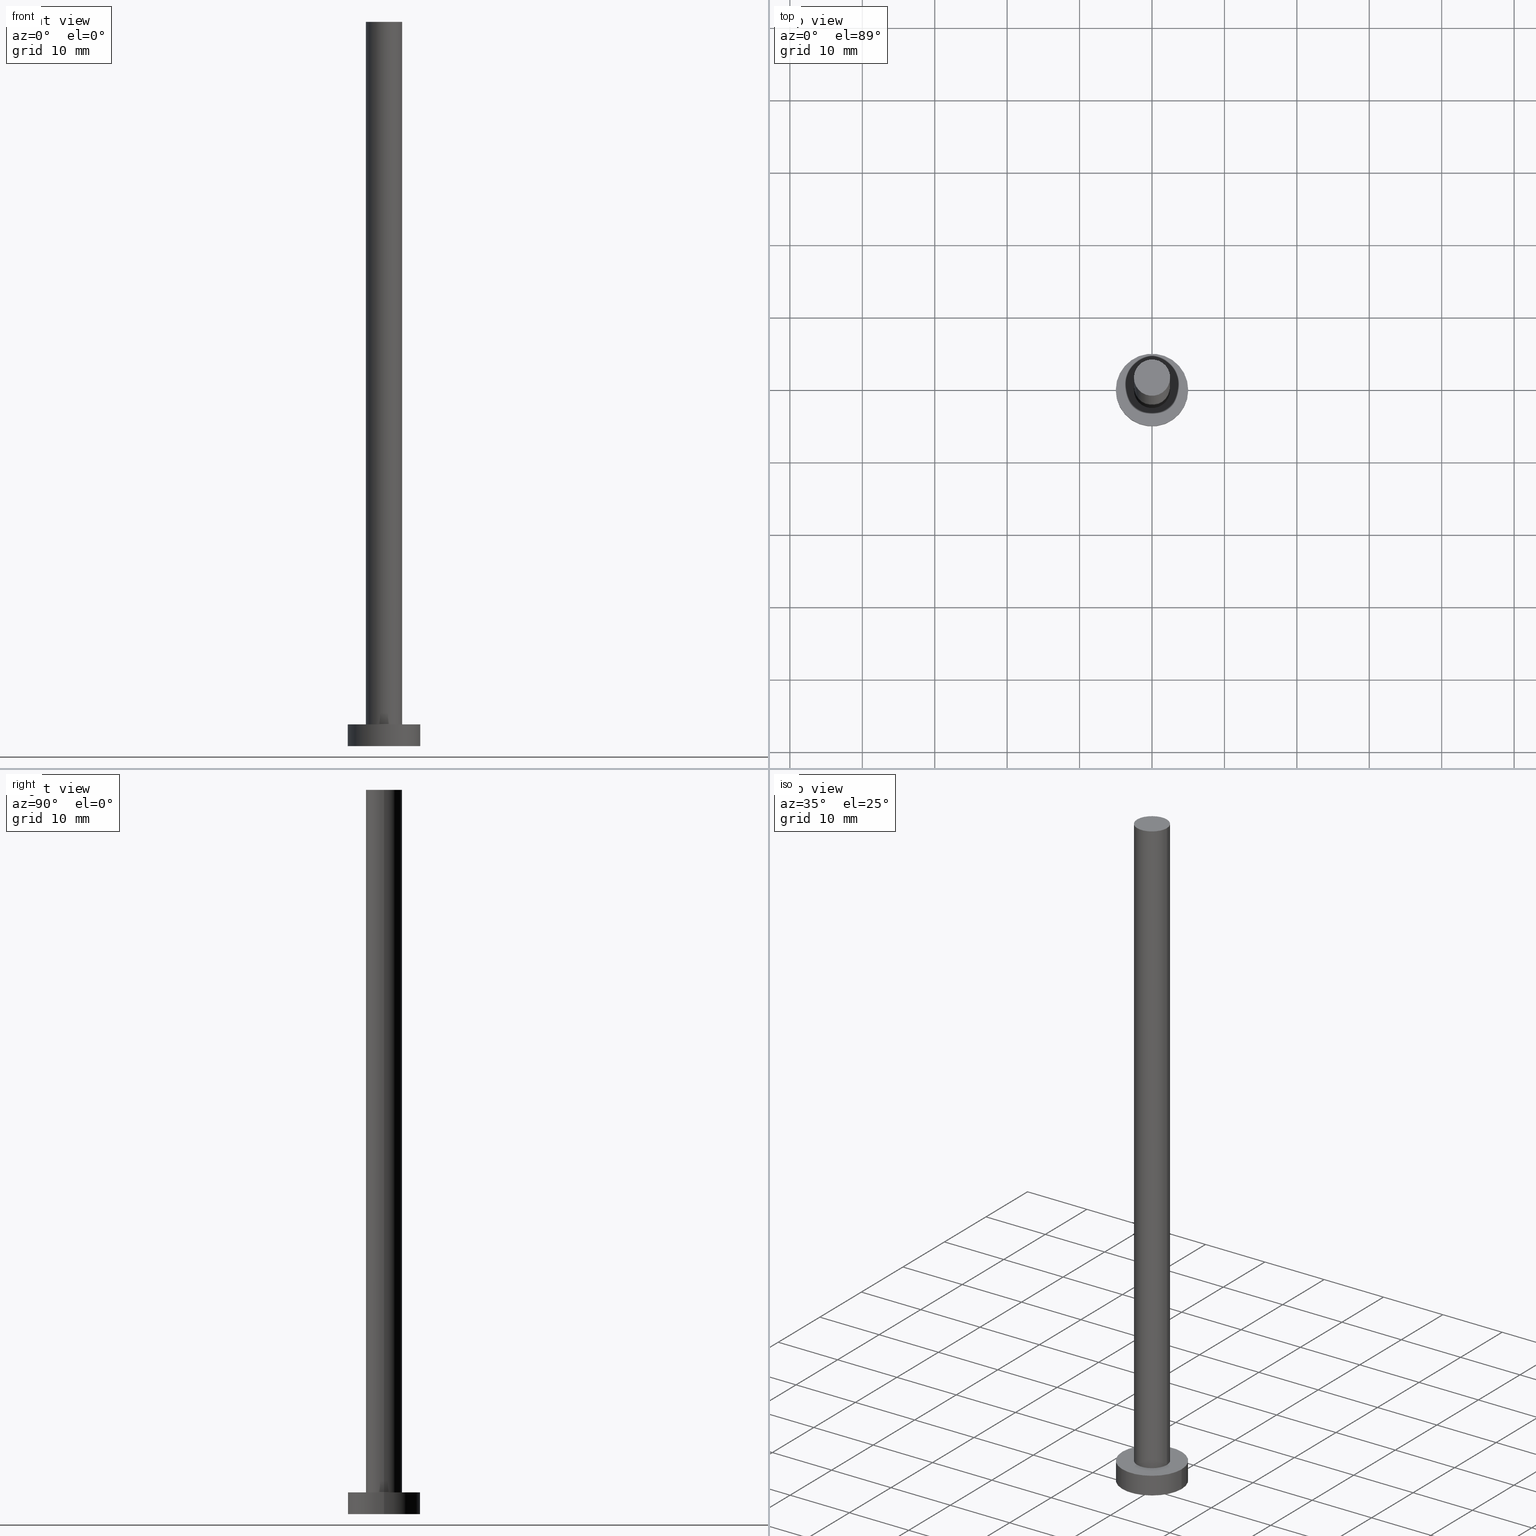
[diagram: canonical four-view strip — front | top / right | iso, engineering-drawing reading convention]
A machine part, canonical four-view strip (front | top / right | iso — engineering-drawing reading convention). The complete STEP part file that produces these views, byte-faithful:
ISO-10303-21;
HEADER;
FILE_DESCRIPTION (( 'STEP AP203' ),
    '1' );
FILE_NAME ('5b1f.STEP',
    '2023-02-13T15:03:22',
    ( '' ),
    ( '' ),
    'SwSTEP 2.0',
    'SolidWorks 2019',
    '' );
FILE_SCHEMA (( 'CONFIG_CONTROL_DESIGN' ));
ENDSEC;

DATA;
#1 = EDGE_CURVE ( 'NONE', #80, #205, #29, .T. ) ;
#2 =( NAMED_UNIT ( * ) SI_UNIT ( $, .STERADIAN. ) SOLID_ANGLE_UNIT ( ) );
#3 = CARTESIAN_POINT ( 'NONE',  ( -5.000000000000000000, 0.000000000000000000, 3.000000000000000000 ) ) ;
#4 = MECHANICAL_CONTEXT ( 'NONE', #49, 'mechanical' ) ;
#5 = CARTESIAN_POINT ( 'NONE',  ( 0.000000000000000000, 0.000000000000000000, 3.000000000000000000 ) ) ;
#6 = FACE_OUTER_BOUND ( 'NONE', #15, .T. ) ;
#7 = AXIS2_PLACEMENT_3D ( 'NONE', #98, #189, #209 ) ;
#8 = AXIS2_PLACEMENT_3D ( 'NONE', #33, #27, #218 ) ;
#9 = DATE_TIME_ROLE ( 'classification_date' ) ;
#10 = ADVANCED_FACE ( 'NONE', ( #230 ), #152, .T. ) ;
#11 = AXIS2_PLACEMENT_3D ( 'NONE', #210, #62, #192 ) ;
#12 = LOCAL_TIME ( 16, 3, 22.00000000000000000, #243 ) ;
#13 = APPLICATION_CONTEXT ( 'configuration controlled 3d designs of mechanical parts and assemblies' ) ;
#14 = PERSON_AND_ORGANIZATION_ROLE ( 'design_owner' ) ;
#15 = EDGE_LOOP ( 'NONE', ( #231, #117 ) ) ;
#16 = AXIS2_PLACEMENT_3D ( 'NONE', #228, #132, #204 ) ;
#17 = AXIS2_PLACEMENT_3D ( 'NONE', #140, #107, #183 ) ;
#18 = ORIENTED_EDGE ( 'NONE', *, *, #170, .T. ) ;
#19 = CARTESIAN_POINT ( 'NONE',  ( 5.000000000000000000, 6.123233995736766282E-16, 0.000000000000000000 ) ) ;
#20 = PRODUCT_DEFINITION ( 'NEZN�M�', '', #196, #23 ) ;
#21 = EDGE_CURVE ( 'NONE', #205, #80, #93, .T. ) ;
#22 = ORIENTED_EDGE ( 'NONE', *, *, #95, .T. ) ;
#23 = DESIGN_CONTEXT ( 'detailed design', #13, 'design' ) ;
#24 = VECTOR ( 'NONE', #160, 1000.000000000000000 ) ;
#25 = ORIENTED_EDGE ( 'NONE', *, *, #146, .F. ) ;
#26 = CC_DESIGN_PERSON_AND_ORGANIZATION_ASSIGNMENT ( #244, #165, ( #196 ) ) ;
#27 = DIRECTION ( 'NONE',  ( -0.000000000000000000, -0.000000000000000000, -1.000000000000000000 ) ) ;
#28 = FACE_OUTER_BOUND ( 'NONE', #60, .T. ) ;
#29 = CIRCLE ( 'NONE', #57, 2.500000000000000000 ) ;
#30 = DIRECTION ( 'NONE',  ( 0.000000000000000000, 0.000000000000000000, 1.000000000000000000 ) ) ;
#31 = CIRCLE ( 'NONE', #82, 2.500000000000000000 ) ;
#32 = DIRECTION ( 'NONE',  ( 0.000000000000000000, 0.000000000000000000, 1.000000000000000000 ) ) ;
#33 = CARTESIAN_POINT ( 'NONE',  ( 0.000000000000000000, 0.000000000000000000, 3.000000000000000000 ) ) ;
#34 = CC_DESIGN_PERSON_AND_ORGANIZATION_ASSIGNMENT ( #199, #221, ( #20 ) ) ;
#35 = CALENDAR_DATE ( 2023, 13, 2 ) ;
#36 = APPROVAL_STATUS ( 'not_yet_approved' ) ;
#37 = DATE_AND_TIME ( #35, #164 ) ;
#38 =( GEOMETRIC_REPRESENTATION_CONTEXT ( 3 ) GLOBAL_UNCERTAINTY_ASSIGNED_CONTEXT ( ( #195 ) ) GLOBAL_UNIT_ASSIGNED_CONTEXT ( ( #66, #194, #2 ) ) REPRESENTATION_CONTEXT ( 'NONE', 'WORKASPACE' ) );
#39 = CARTESIAN_POINT ( 'NONE',  ( 2.500000000000000000, 3.061616997868382648E-16, 100.0000000000000000 ) ) ;
#40 = ORIENTED_EDGE ( 'NONE', *, *, #21, .F. ) ;
#41 = VECTOR ( 'NONE', #215, 1000.000000000000000 ) ;
#42 = CARTESIAN_POINT ( 'NONE',  ( 0.000000000000000000, 0.000000000000000000, 3.000000000000000000 ) ) ;
#43 = ORIENTED_EDGE ( 'NONE', *, *, #77, .T. ) ;
#44 = ORIENTED_EDGE ( 'NONE', *, *, #77, .F. ) ;
#45 = PRODUCT_RELATED_PRODUCT_CATEGORY ( 'detail', '', ( #46 ) ) ;
#46 = PRODUCT ( '5b1f', '5b1f', '', ( #4 ) ) ;
#47 = LINE ( 'NONE', #106, #41 ) ;
#48 = CARTESIAN_POINT ( 'NONE',  ( 5.000000000000000000, 6.123233995736766282E-16, 3.000000000000000000 ) ) ;
#49 = APPLICATION_CONTEXT ( 'configuration controlled 3d designs of mechanical parts and assemblies' ) ;
#50 = DIRECTION ( 'NONE',  ( 1.000000000000000000, 0.000000000000000000, 0.000000000000000000 ) ) ;
#51 = AXIS2_PLACEMENT_3D ( 'NONE', #148, #203, #247 ) ;
#52 = CYLINDRICAL_SURFACE ( 'NONE', #245, 5.000000000000000000 ) ;
#53 = PERSON_AND_ORGANIZATION ( #180, #154 ) ;
#54 = APPROVAL_STATUS ( 'not_yet_approved' ) ;
#55 = CC_DESIGN_PERSON_AND_ORGANIZATION_ASSIGNMENT ( #74, #242, ( #196 ) ) ;
#56 = APPROVAL_STATUS ( 'not_yet_approved' ) ;
#57 = AXIS2_PLACEMENT_3D ( 'NONE', #42, #249, #175 ) ;
#58 = CC_DESIGN_APPROVAL ( #214, ( #196 ) ) ;
#59 = ORIENTED_EDGE ( 'NONE', *, *, #70, .F. ) ;
#60 = EDGE_LOOP ( 'NONE', ( #59, #253, #43, #155 ) ) ;
#61 = CC_DESIGN_DATE_AND_TIME_ASSIGNMENT ( #89, #127, ( #20 ) ) ;
#62 = DIRECTION ( 'NONE',  ( -0.000000000000000000, -0.000000000000000000, -1.000000000000000000 ) ) ;
#63 = AXIS2_PLACEMENT_3D ( 'NONE', #131, #225, #111 ) ;
#64 = ORIENTED_EDGE ( 'NONE', *, *, #220, .T. ) ;
#65 = VERTEX_POINT ( 'NONE', #19 ) ;
#66 =( LENGTH_UNIT ( ) NAMED_UNIT ( * ) SI_UNIT ( .MILLI., .METRE. ) );
#67 = APPLICATION_PROTOCOL_DEFINITION ( 'international standard', 'config_control_design', 1994, #49 ) ;
#68 = FACE_OUTER_BOUND ( 'NONE', #156, .T. ) ;
#69 = CC_DESIGN_PERSON_AND_ORGANIZATION_ASSIGNMENT ( #202, #113, ( #88 ) ) ;
#70 = EDGE_CURVE ( 'NONE', #79, #80, #233, .T. ) ;
#71 = DIRECTION ( 'NONE',  ( 1.000000000000000000, 0.000000000000000000, 0.000000000000000000 ) ) ;
#72 = APPROVAL_PERSON_ORGANIZATION ( #90, #103, #185 ) ;
#73 = CALENDAR_DATE ( 2023, 13, 2 ) ;
#74 = PERSON_AND_ORGANIZATION ( #180, #154 ) ;
#75 = COORDINATED_UNIVERSAL_TIME_OFFSET ( 1, 0, .AHEAD. ) ;
#76 = CC_DESIGN_APPROVAL ( #255, ( #88 ) ) ;
#77 = EDGE_CURVE ( 'NONE', #94, #205, #119, .T. ) ;
#78 = PERSON_AND_ORGANIZATION ( #180, #154 ) ;
#79 = VERTEX_POINT ( 'NONE', #114 ) ;
#80 = VERTEX_POINT ( 'NONE', #252 ) ;
#81 = ORIENTED_EDGE ( 'NONE', *, *, #239, .T. ) ;
#82 = AXIS2_PLACEMENT_3D ( 'NONE', #177, #213, #71 ) ;
#83 = FACE_OUTER_BOUND ( 'NONE', #96, .T. ) ;
#84 = CYLINDRICAL_SURFACE ( 'NONE', #17, 2.500000000000000000 ) ;
#85 = CARTESIAN_POINT ( 'NONE',  ( 0.000000000000000000, 0.000000000000000000, 100.0000000000000000 ) ) ;
#86 = CARTESIAN_POINT ( 'NONE',  ( -5.000000000000000000, 0.000000000000000000, 0.000000000000000000 ) ) ;
#87 = DIRECTION ( 'NONE',  ( -0.000000000000000000, -0.000000000000000000, -1.000000000000000000 ) ) ;
#88 = SECURITY_CLASSIFICATION ( '', '', #227 ) ;
#89 = DATE_AND_TIME ( #73, #99 ) ;
#90 = PERSON_AND_ORGANIZATION ( #180, #154 ) ;
#91 = ADVANCED_FACE ( 'NONE', ( #83 ), #234, .F. ) ;
#92 = APPROVAL_DATE_TIME ( #37, #255 ) ;
#93 = CIRCLE ( 'NONE', #7, 2.500000000000000000 ) ;
#94 = VERTEX_POINT ( 'NONE', #236 ) ;
#95 = EDGE_CURVE ( 'NONE', #65, #136, #153, .T. ) ;
#96 = EDGE_LOOP ( 'NONE', ( #169, #190 ) ) ;
#97 = EDGE_LOOP ( 'NONE', ( #149, #120, #151, #44 ) ) ;
#98 = CARTESIAN_POINT ( 'NONE',  ( 0.000000000000000000, 0.000000000000000000, 3.000000000000000000 ) ) ;
#99 = LOCAL_TIME ( 16, 3, 22.00000000000000000, #75 ) ;
#100 = EDGE_LOOP ( 'NONE', ( #186, #188, #18, #168 ) ) ;
#101 = FACE_OUTER_BOUND ( 'NONE', #118, .T. ) ;
#102 = PLANE ( 'NONE',  #191 ) ;
#103 = APPROVAL ( #54, 'NEUR�EN�' ) ;
#104 = DIRECTION ( 'NONE',  ( 1.000000000000000000, 0.000000000000000000, 0.000000000000000000 ) ) ;
#105 = DIRECTION ( 'NONE',  ( 1.000000000000000000, 0.000000000000000000, 0.000000000000000000 ) ) ;
#106 = CARTESIAN_POINT ( 'NONE',  ( 5.000000000000000000, 6.123233995736766282E-16, 3.000000000000000000 ) ) ;
#107 = DIRECTION ( 'NONE',  ( -0.000000000000000000, -0.000000000000000000, -1.000000000000000000 ) ) ;
#108 = SHAPE_DEFINITION_REPRESENTATION ( #246, #128 ) ;
#109 = DIRECTION ( 'NONE',  ( 0.000000000000000000, 0.000000000000000000, 1.000000000000000000 ) ) ;
#110 = DATE_AND_TIME ( #129, #130 ) ;
#111 = DIRECTION ( 'NONE',  ( 1.000000000000000000, 0.000000000000000000, -0.000000000000000000 ) ) ;
#112 = ADVANCED_FACE ( 'NONE', ( #101 ), #52, .T. ) ;
#113 = PERSON_AND_ORGANIZATION_ROLE ( 'classification_officer' ) ;
#114 = CARTESIAN_POINT ( 'NONE',  ( 2.500000000000000000, 3.061616997868382648E-16, 100.0000000000000000 ) ) ;
#115 = ADVANCED_FACE ( 'NONE', ( #122 ), #193, .T. ) ;
#116 = AXIS2_PLACEMENT_3D ( 'NONE', #159, #238, #104 ) ;
#117 = ORIENTED_EDGE ( 'NONE', *, *, #226, .T. ) ;
#118 = EDGE_LOOP ( 'NONE', ( #25, #81, #22, #138 ) ) ;
#119 = LINE ( 'NONE', #157, #237 ) ;
#120 = ORIENTED_EDGE ( 'NONE', *, *, #70, .T. ) ;
#121 = AXIS2_PLACEMENT_3D ( 'NONE', #141, #30, #105 ) ;
#122 = FACE_OUTER_BOUND ( 'NONE', #100, .T. ) ;
#123 = APPROVAL_PERSON_ORGANIZATION ( #78, #214, #145 ) ;
#124 = CARTESIAN_POINT ( 'NONE',  ( 0.000000000000000000, 0.000000000000000000, 3.000000000000000000 ) ) ;
#125 = DATE_AND_TIME ( #147, #12 ) ;
#126 = APPLICATION_PROTOCOL_DEFINITION ( 'international standard', 'config_control_design', 1994, #13 ) ;
#127 = DATE_TIME_ROLE ( 'creation_date' ) ;
#128 = ADVANCED_BREP_SHAPE_REPRESENTATION ( '5b1f', ( #182, #121 ), #38 ) ;
#129 = CALENDAR_DATE ( 2023, 13, 2 ) ;
#130 = LOCAL_TIME ( 16, 3, 22.00000000000000000, #224 ) ;
#131 = CARTESIAN_POINT ( 'NONE',  ( 0.000000000000000000, 0.000000000000000000, 3.000000000000000000 ) ) ;
#132 = DIRECTION ( 'NONE',  ( 0.000000000000000000, 0.000000000000000000, 1.000000000000000000 ) ) ;
#133 = ADVANCED_FACE ( 'NONE', ( #28 ), #84, .T. ) ;
#134 = VERTEX_POINT ( 'NONE', #48 ) ;
#135 = CIRCLE ( 'NONE', #51, 5.000000000000000000 ) ;
#136 = VERTEX_POINT ( 'NONE', #86 ) ;
#137 = DIRECTION ( 'NONE',  ( -0.000000000000000000, -0.000000000000000000, -1.000000000000000000 ) ) ;
#138 = ORIENTED_EDGE ( 'NONE', *, *, #170, .F. ) ;
#139 = CARTESIAN_POINT ( 'NONE',  ( -5.000000000000000000, 0.000000000000000000, 3.000000000000000000 ) ) ;
#140 = CARTESIAN_POINT ( 'NONE',  ( 0.000000000000000000, 0.000000000000000000, 100.0000000000000000 ) ) ;
#141 = CARTESIAN_POINT ( 'NONE',  ( 0.000000000000000000, 0.000000000000000000, 0.000000000000000000 ) ) ;
#142 = CIRCLE ( 'NONE', #173, 5.000000000000000000 ) ;
#143 = DIRECTION ( 'NONE',  ( 0.000000000000000000, 0.000000000000000000, 1.000000000000000000 ) ) ;
#144 = COORDINATED_UNIVERSAL_TIME_OFFSET ( 1, 0, .AHEAD. ) ;
#145 = APPROVAL_ROLE ( '' ) ;
#146 = EDGE_CURVE ( 'NONE', #134, #208, #179, .T. ) ;
#147 = CALENDAR_DATE ( 2023, 13, 2 ) ;
#148 = CARTESIAN_POINT ( 'NONE',  ( 0.000000000000000000, 0.000000000000000000, 0.000000000000000000 ) ) ;
#149 = ORIENTED_EDGE ( 'NONE', *, *, #226, .F. ) ;
#150 = CARTESIAN_POINT ( 'NONE',  ( -2.500000000000000000, 0.000000000000000000, 3.000000000000000000 ) ) ;
#151 = ORIENTED_EDGE ( 'NONE', *, *, #1, .T. ) ;
#152 = CYLINDRICAL_SURFACE ( 'NONE', #11, 2.500000000000000000 ) ;
#153 = CIRCLE ( 'NONE', #223, 5.000000000000000000 ) ;
#154 = ORGANIZATION ( 'NEUR�EN�', 'NEUR�EN�', '' ) ;
#155 = ORIENTED_EDGE ( 'NONE', *, *, #21, .T. ) ;
#156 = EDGE_LOOP ( 'NONE', ( #64, #172 ) ) ;
#157 = CARTESIAN_POINT ( 'NONE',  ( -2.500000000000000000, 0.000000000000000000, 100.0000000000000000 ) ) ;
#158 = VECTOR ( 'NONE', #137, 1000.000000000000000 ) ;
#159 = CARTESIAN_POINT ( 'NONE',  ( 0.000000000000000000, 0.000000000000000000, 3.000000000000000000 ) ) ;
#160 = DIRECTION ( 'NONE',  ( -0.000000000000000000, -0.000000000000000000, -1.000000000000000000 ) ) ;
#161 = DIRECTION ( 'NONE',  ( -1.000000000000000000, 0.000000000000000000, 0.000000000000000000 ) ) ;
#162 = CLOSED_SHELL ( 'NONE', ( #10, #112, #115, #171, #91, #133, #206 ) ) ;
#163 = CIRCLE ( 'NONE', #251, 2.500000000000000000 ) ;
#164 = LOCAL_TIME ( 16, 3, 22.00000000000000000, #200 ) ;
#165 = PERSON_AND_ORGANIZATION_ROLE ( 'creator' ) ;
#166 = APPROVAL_ROLE ( '' ) ;
#167 = CALENDAR_DATE ( 2023, 13, 2 ) ;
#168 = ORIENTED_EDGE ( 'NONE', *, *, #176, .T. ) ;
#169 = ORIENTED_EDGE ( 'NONE', *, *, #176, .F. ) ;
#170 = EDGE_CURVE ( 'NONE', #208, #136, #178, .T. ) ;
#171 = ADVANCED_FACE ( 'NONE', ( #240, #68 ), #216, .T. ) ;
#172 = ORIENTED_EDGE ( 'NONE', *, *, #146, .T. ) ;
#173 = AXIS2_PLACEMENT_3D ( 'NONE', #124, #32, #50 ) ;
#174 = DIRECTION ( 'NONE',  ( -0.000000000000000000, -0.000000000000000000, -1.000000000000000000 ) ) ;
#175 = DIRECTION ( 'NONE',  ( 1.000000000000000000, 0.000000000000000000, 0.000000000000000000 ) ) ;
#176 = EDGE_CURVE ( 'NONE', #136, #65, #135, .T. ) ;
#177 = CARTESIAN_POINT ( 'NONE',  ( 0.000000000000000000, 0.000000000000000000, 100.0000000000000000 ) ) ;
#178 = LINE ( 'NONE', #3, #24 ) ;
#179 = CIRCLE ( 'NONE', #116, 5.000000000000000000 ) ;
#180 = PERSON ( 'NEUR�EN�', 'NEUR�EN�', 'NEUR�EN�', ('NEUR�EN�'), ('NEUR�EN�'), ('NEUR�EN�') ) ;
#181 = DIRECTION ( 'NONE',  ( 1.000000000000000000, 0.000000000000000000, 0.000000000000000000 ) ) ;
#182 = MANIFOLD_SOLID_BREP ( 'P�idat vysunut�m3', #162 ) ;
#183 = DIRECTION ( 'NONE',  ( -1.000000000000000000, 0.000000000000000000, 0.000000000000000000 ) ) ;
#184 = APPROVAL_DATE_TIME ( #125, #214 ) ;
#185 = APPROVAL_ROLE ( '' ) ;
#186 = ORIENTED_EDGE ( 'NONE', *, *, #239, .F. ) ;
#187 = CC_DESIGN_DATE_AND_TIME_ASSIGNMENT ( #110, #9, ( #88 ) ) ;
#188 = ORIENTED_EDGE ( 'NONE', *, *, #220, .F. ) ;
#189 = DIRECTION ( 'NONE',  ( 0.000000000000000000, 0.000000000000000000, 1.000000000000000000 ) ) ;
#190 = ORIENTED_EDGE ( 'NONE', *, *, #95, .F. ) ;
#191 = AXIS2_PLACEMENT_3D ( 'NONE', #254, #143, #217 ) ;
#192 = DIRECTION ( 'NONE',  ( -1.000000000000000000, 0.000000000000000000, 0.000000000000000000 ) ) ;
#193 = CYLINDRICAL_SURFACE ( 'NONE', #8, 5.000000000000000000 ) ;
#194 =( NAMED_UNIT ( * ) PLANE_ANGLE_UNIT ( ) SI_UNIT ( $, .RADIAN. ) );
#195 = UNCERTAINTY_MEASURE_WITH_UNIT (LENGTH_MEASURE( 1.000000000000000082E-05 ), #66, 'distance_accuracy_value', 'NONE');
#196 = PRODUCT_DEFINITION_FORMATION_WITH_SPECIFIED_SOURCE ( 'LIBOVOLN�', '', #46, .NOT_KNOWN. ) ;
#197 = DIRECTION ( 'NONE',  ( 1.000000000000000000, 0.000000000000000000, 0.000000000000000000 ) ) ;
#198 = PERSON_AND_ORGANIZATION ( #180, #154 ) ;
#199 = PERSON_AND_ORGANIZATION ( #180, #154 ) ;
#200 = COORDINATED_UNIVERSAL_TIME_OFFSET ( 1, 0, .AHEAD. ) ;
#201 = APPROVAL_DATE_TIME ( #222, #103 ) ;
#202 = PERSON_AND_ORGANIZATION ( #180, #154 ) ;
#203 = DIRECTION ( 'NONE',  ( 0.000000000000000000, 0.000000000000000000, 1.000000000000000000 ) ) ;
#204 = DIRECTION ( 'NONE',  ( 1.000000000000000000, 0.000000000000000000, -0.000000000000000000 ) ) ;
#205 = VERTEX_POINT ( 'NONE', #150 ) ;
#206 = ADVANCED_FACE ( 'NONE', ( #6 ), #102, .T. ) ;
#207 = APPROVAL_PERSON_ORGANIZATION ( #198, #255, #166 ) ;
#208 = VERTEX_POINT ( 'NONE', #139 ) ;
#209 = DIRECTION ( 'NONE',  ( 1.000000000000000000, 0.000000000000000000, 0.000000000000000000 ) ) ;
#210 = CARTESIAN_POINT ( 'NONE',  ( 0.000000000000000000, 0.000000000000000000, 100.0000000000000000 ) ) ;
#211 = CC_DESIGN_SECURITY_CLASSIFICATION ( #88, ( #196 ) ) ;
#212 = CARTESIAN_POINT ( 'NONE',  ( 0.000000000000000000, 0.000000000000000000, 0.000000000000000000 ) ) ;
#213 = DIRECTION ( 'NONE',  ( 0.000000000000000000, 0.000000000000000000, 1.000000000000000000 ) ) ;
#214 = APPROVAL ( #36, 'NEUR�EN�' ) ;
#215 = DIRECTION ( 'NONE',  ( -0.000000000000000000, -0.000000000000000000, -1.000000000000000000 ) ) ;
#216 = PLANE ( 'NONE',  #63 ) ;
#217 = DIRECTION ( 'NONE',  ( 1.000000000000000000, 0.000000000000000000, -0.000000000000000000 ) ) ;
#218 = DIRECTION ( 'NONE',  ( -1.000000000000000000, 0.000000000000000000, 0.000000000000000000 ) ) ;
#219 = LOCAL_TIME ( 16, 3, 22.00000000000000000, #144 ) ;
#220 = EDGE_CURVE ( 'NONE', #208, #134, #142, .T. ) ;
#221 = PERSON_AND_ORGANIZATION_ROLE ( 'creator' ) ;
#222 = DATE_AND_TIME ( #167, #219 ) ;
#223 = AXIS2_PLACEMENT_3D ( 'NONE', #212, #109, #197 ) ;
#224 = COORDINATED_UNIVERSAL_TIME_OFFSET ( 1, 0, .AHEAD. ) ;
#225 = DIRECTION ( 'NONE',  ( 0.000000000000000000, 0.000000000000000000, 1.000000000000000000 ) ) ;
#226 = EDGE_CURVE ( 'NONE', #79, #94, #31, .T. ) ;
#227 = SECURITY_CLASSIFICATION_LEVEL ( 'unclassified' ) ;
#228 = CARTESIAN_POINT ( 'NONE',  ( 0.000000000000000000, 0.000000000000000000, 0.000000000000000000 ) ) ;
#229 = CC_DESIGN_PERSON_AND_ORGANIZATION_ASSIGNMENT ( #53, #14, ( #46 ) ) ;
#230 = FACE_OUTER_BOUND ( 'NONE', #97, .T. ) ;
#231 = ORIENTED_EDGE ( 'NONE', *, *, #241, .T. ) ;
#232 = CC_DESIGN_APPROVAL ( #103, ( #20 ) ) ;
#233 = LINE ( 'NONE', #39, #158 ) ;
#234 = PLANE ( 'NONE',  #16 ) ;
#235 = DIRECTION ( 'NONE',  ( 0.000000000000000000, 0.000000000000000000, 1.000000000000000000 ) ) ;
#236 = CARTESIAN_POINT ( 'NONE',  ( -2.500000000000000000, 0.000000000000000000, 100.0000000000000000 ) ) ;
#237 = VECTOR ( 'NONE', #174, 1000.000000000000000 ) ;
#238 = DIRECTION ( 'NONE',  ( 0.000000000000000000, 0.000000000000000000, 1.000000000000000000 ) ) ;
#239 = EDGE_CURVE ( 'NONE', #134, #65, #47, .T. ) ;
#240 = FACE_BOUND ( 'NONE', #248, .T. ) ;
#241 = EDGE_CURVE ( 'NONE', #94, #79, #163, .T. ) ;
#242 = PERSON_AND_ORGANIZATION_ROLE ( 'design_supplier' ) ;
#243 = COORDINATED_UNIVERSAL_TIME_OFFSET ( 1, 0, .AHEAD. ) ;
#244 = PERSON_AND_ORGANIZATION ( #180, #154 ) ;
#245 = AXIS2_PLACEMENT_3D ( 'NONE', #5, #87, #161 ) ;
#246 = PRODUCT_DEFINITION_SHAPE ( 'NONE', 'NONE',  #20 ) ;
#247 = DIRECTION ( 'NONE',  ( 1.000000000000000000, 0.000000000000000000, 0.000000000000000000 ) ) ;
#248 = EDGE_LOOP ( 'NONE', ( #40, #250 ) ) ;
#249 = DIRECTION ( 'NONE',  ( 0.000000000000000000, 0.000000000000000000, 1.000000000000000000 ) ) ;
#250 = ORIENTED_EDGE ( 'NONE', *, *, #1, .F. ) ;
#251 = AXIS2_PLACEMENT_3D ( 'NONE', #85, #235, #181 ) ;
#252 = CARTESIAN_POINT ( 'NONE',  ( 2.500000000000000000, 3.061616997868382648E-16, 3.000000000000000000 ) ) ;
#253 = ORIENTED_EDGE ( 'NONE', *, *, #241, .F. ) ;
#254 = CARTESIAN_POINT ( 'NONE',  ( 0.000000000000000000, 0.000000000000000000, 100.0000000000000000 ) ) ;
#255 = APPROVAL ( #56, 'NEUR�EN�' ) ;
ENDSEC;
END-ISO-10303-21;
